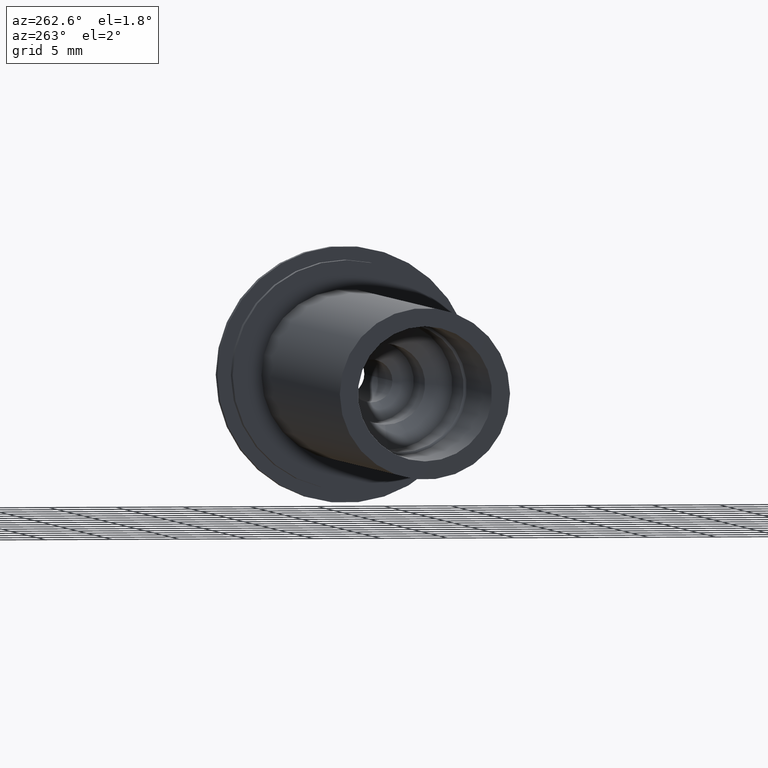
[diagram: clean part render]
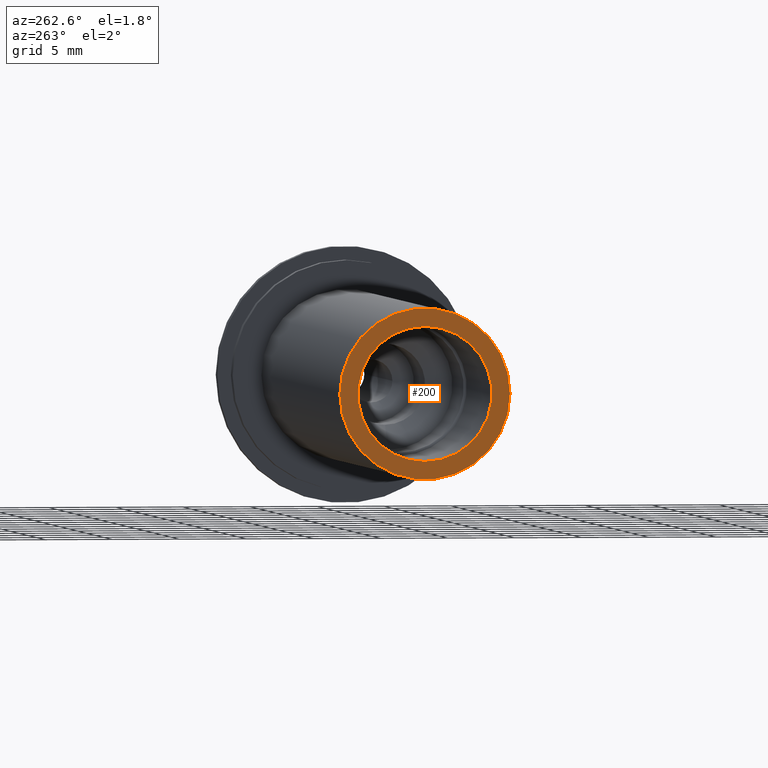
[diagram: same view with one face highlighted and labeled with its STEP entity id]
A machine part, auxiliary view. The second image highlights one B-rep face of the part: STEP entity #200.
In plain terms, the highlighted planar face has unit normal (-1, 0, 0).
Its self-contained STEP definition (entity closure, byte-faithful):
#17=FACE_BOUND('',#57,.T.);
#21=PLANE('',#249);
#40=FACE_OUTER_BOUND('',#56,.T.);
#56=EDGE_LOOP('',(#175));
#57=EDGE_LOOP('',(#176));
#89=CIRCLE('',#240,5.);
#94=CIRCLE('',#250,6.35);
#104=VERTEX_POINT('',#352);
#109=VERTEX_POINT('',#370);
#124=EDGE_CURVE('',#104,#104,#89,.T.);
#132=EDGE_CURVE('',#109,#109,#94,.T.);
#175=ORIENTED_EDGE('',*,*,#132,.F.);
#176=ORIENTED_EDGE('',*,*,#124,.T.);
#200=ADVANCED_FACE('',(#40,#17),#21,.T.);
#240=AXIS2_PLACEMENT_3D('',#353,#289,#290);
#249=AXIS2_PLACEMENT_3D('',#369,#310,#311);
#250=AXIS2_PLACEMENT_3D('',#371,#312,#313);
#289=DIRECTION('center_axis',(1.,0.,0.));
#290=DIRECTION('ref_axis',(0.,0.,1.));
#310=DIRECTION('center_axis',(-1.,0.,0.));
#311=DIRECTION('ref_axis',(0.,0.,1.));
#312=DIRECTION('center_axis',(1.,0.,0.));
#313=DIRECTION('ref_axis',(0.,0.,-1.));
#352=CARTESIAN_POINT('',(-47.,-6.12323399573677E-16,-5.));
#353=CARTESIAN_POINT('Origin',(-47.,0.,0.));
#369=CARTESIAN_POINT('Origin',(-47.,6.35,0.));
#370=CARTESIAN_POINT('',(-47.,-6.35,-7.77650717458569E-16));
#371=CARTESIAN_POINT('Origin',(-47.,0.,0.));